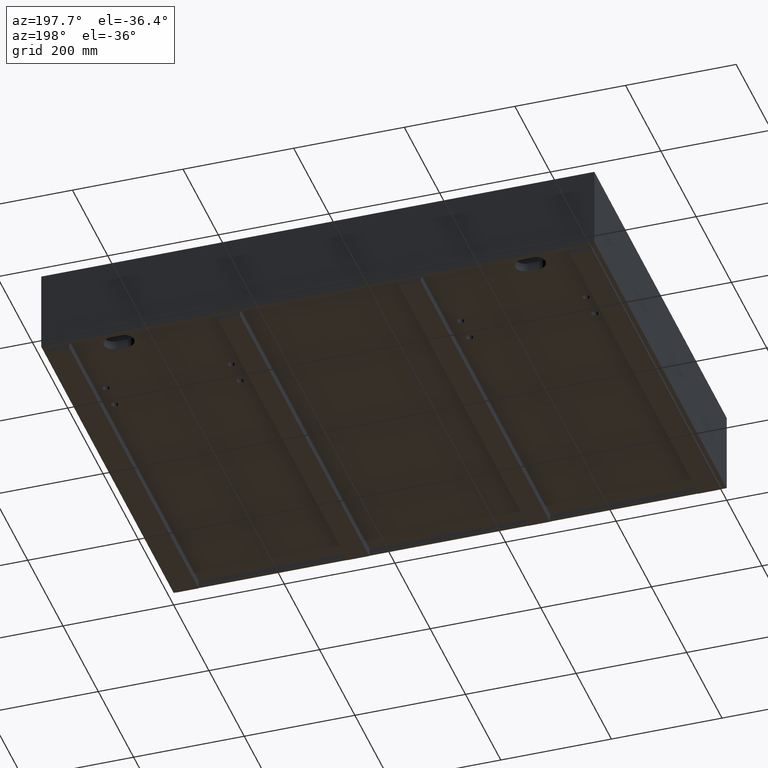
[diagram: clean part render]
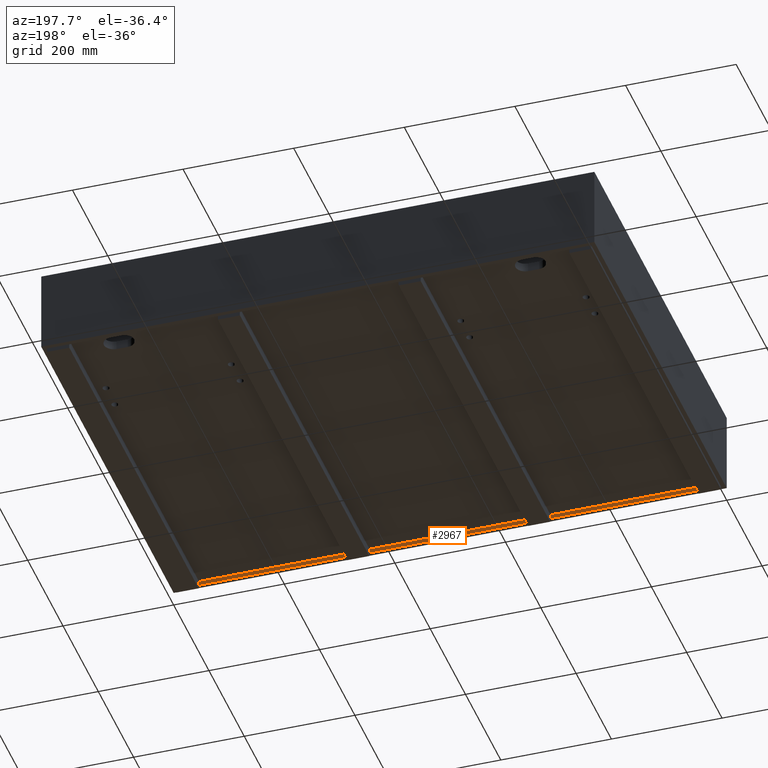
[diagram: same view with one face highlighted and labeled with its STEP entity id]
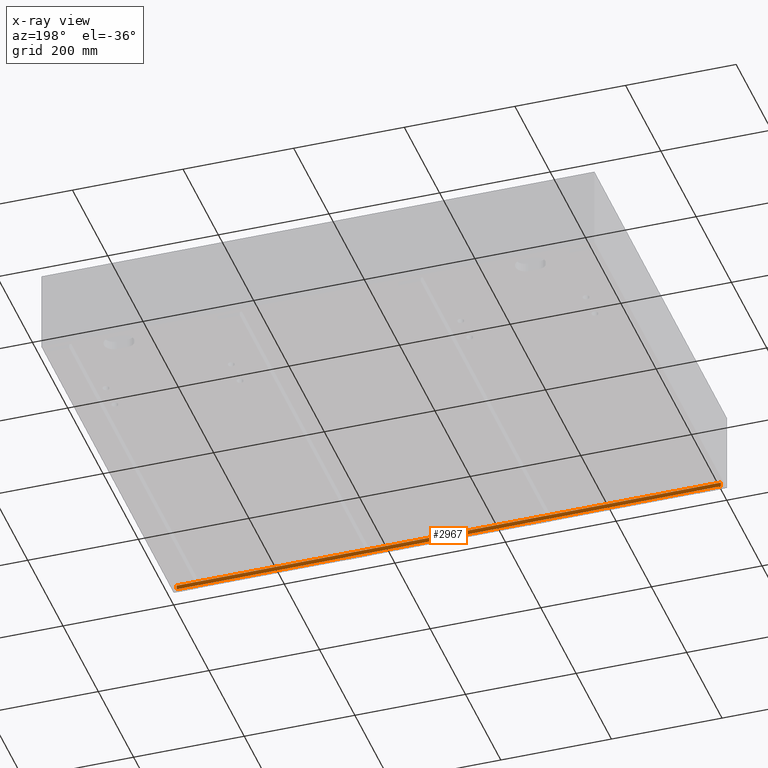
[diagram: x-ray of the same camera — body ghosted, the highlighted face saturated]
A machine part, auxiliary view. The second image highlights one B-rep face of the part: STEP entity #2967.
The next image is the same camera in x-ray: the body ghosted, the highlighted face saturated — about 0% of this face is hidden behind the body in this view.
In plain terms, the highlighted planar face has unit normal (-0, 1, 0).
Its self-contained STEP definition (entity closure, byte-faithful):
#645 = VERTEX_POINT ( 'NONE', #1263 ) ;
#706 = VECTOR ( 'NONE', #10346, 1000.000000000000000 ) ;
#1263 = CARTESIAN_POINT ( 'NONE',  ( 7.999999999999896083, 8.000000000000000000, -142.0000000000000284 ) ) ;
#1307 = LINE ( 'NONE', #7051, #16354 ) ;
#1512 = EDGE_CURVE ( 'NONE', #4256, #645, #1307, .T. ) ;
#2869 = VERTEX_POINT ( 'NONE', #6754 ) ;
#2967 = ADVANCED_FACE ( 'NONE', ( #10331 ), #16052, .T. ) ;
#3166 = CARTESIAN_POINT ( 'NONE',  ( 0.0000000000000000000, 8.000000000000000000, -1.387778780781445676E-14 ) ) ;
#3812 = LINE ( 'NONE', #9578, #5974 ) ;
#4056 = ORIENTED_EDGE ( 'NONE', *, *, #6193, .T. ) ;
#4089 = DIRECTION ( 'NONE',  ( -1.000000000000000000, 0.0000000000000000000, -6.018531076210112041E-35 ) ) ;
#4256 = VERTEX_POINT ( 'NONE', #15418 ) ;
#4594 = CARTESIAN_POINT ( 'NONE',  ( 991.9999999999998863, 8.000000000000000000, 0.0000000000000000000 ) ) ;
#5839 = VECTOR ( 'NONE', #4089, 1000.000000000000000 ) ;
#5974 = VECTOR ( 'NONE', #15286, 1000.000000000000000 ) ;
#6105 = EDGE_CURVE ( 'NONE', #2869, #645, #3812, .T. ) ;
#6193 = EDGE_CURVE ( 'NONE', #12215, #2869, #11252, .T. ) ;
#6754 = CARTESIAN_POINT ( 'NONE',  ( 7.999999999999896083, 8.000000000000000000, -150.0000000000000284 ) ) ;
#6868 = ORIENTED_EDGE ( 'NONE', *, *, #14327, .T. ) ;
#7051 = CARTESIAN_POINT ( 'NONE',  ( 0.0000000000000000000, 8.000000000000000000, -142.0000000000000284 ) ) ;
#8921 = DIRECTION ( 'NONE',  ( -0.0000000000000000000, 1.000000000000000000, 0.0000000000000000000 ) ) ;
#9578 = CARTESIAN_POINT ( 'NONE',  ( 7.999999999999896083, 8.000000000000000000, -1.387778780781445676E-14 ) ) ;
#10331 = FACE_OUTER_BOUND ( 'NONE', #10376, .T. ) ;
#10346 = DIRECTION ( 'NONE',  ( -6.018531076210112041E-35, 0.0000000000000000000, -1.000000000000000000 ) ) ;
#10376 = EDGE_LOOP ( 'NONE', ( #11964, #6868, #4056, #11422 ) ) ;
#11252 = LINE ( 'NONE', #16981, #5839 ) ;
#11422 = ORIENTED_EDGE ( 'NONE', *, *, #6105, .T. ) ;
#11964 = ORIENTED_EDGE ( 'NONE', *, *, #1512, .F. ) ;
#12215 = VERTEX_POINT ( 'NONE', #14480 ) ;
#12791 = DIRECTION ( 'NONE',  ( -1.000000000000000000, -3.081487911019577365E-33, 1.110223024625156540E-16 ) ) ;
#13042 = AXIS2_PLACEMENT_3D ( 'NONE', #3166, #8921, #14620 ) ;
#14327 = EDGE_CURVE ( 'NONE', #4256, #12215, #17475, .T. ) ;
#14480 = CARTESIAN_POINT ( 'NONE',  ( 991.9999999999998863, 8.000000000000000000, -150.0000000000000000 ) ) ;
#14620 = DIRECTION ( 'NONE',  ( 6.018531076210112041E-35, 0.0000000000000000000, 1.000000000000000000 ) ) ;
#15286 = DIRECTION ( 'NONE',  ( 6.018531076210112041E-35, 0.0000000000000000000, 1.000000000000000000 ) ) ;
#15418 = CARTESIAN_POINT ( 'NONE',  ( 991.9999999999998863, 8.000000000000001776, -142.0000000000000853 ) ) ;
#16052 = PLANE ( 'NONE',  #13042 ) ;
#16354 = VECTOR ( 'NONE', #12791, 1000.000000000000000 ) ;
#16981 = CARTESIAN_POINT ( 'NONE',  ( 0.0000000000000000000, 8.000000000000000000, -150.0000000000000284 ) ) ;
#17475 = LINE ( 'NONE', #4594, #706 ) ;